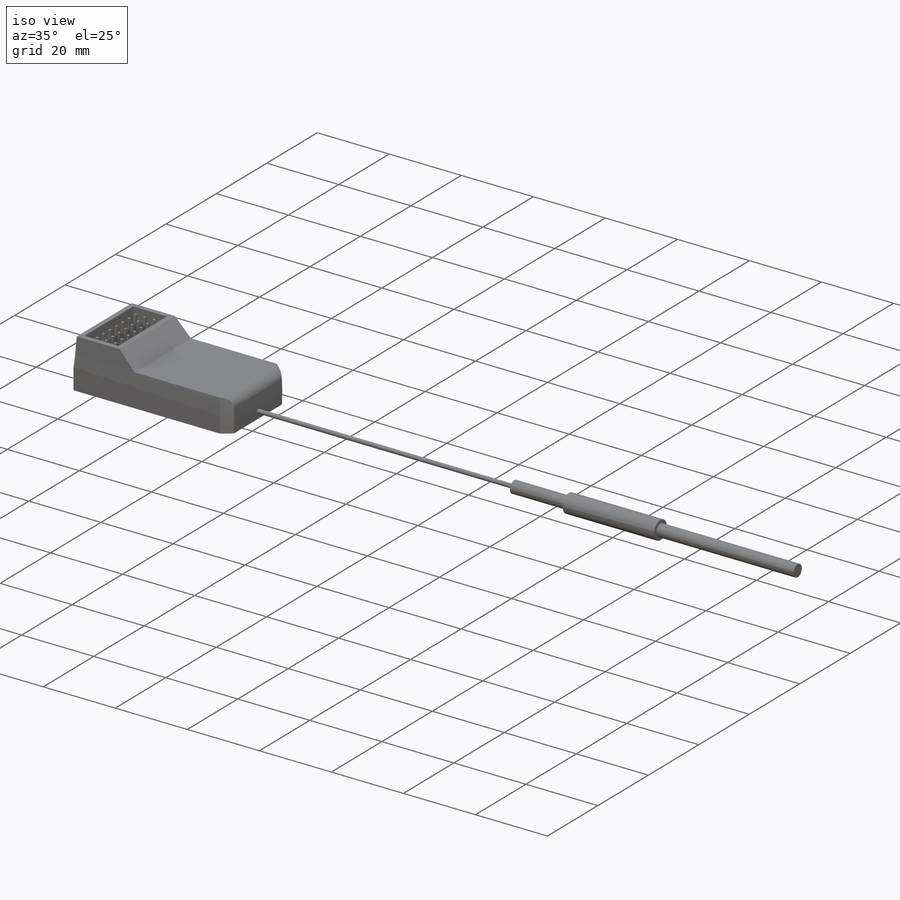
[diagram: iso view]
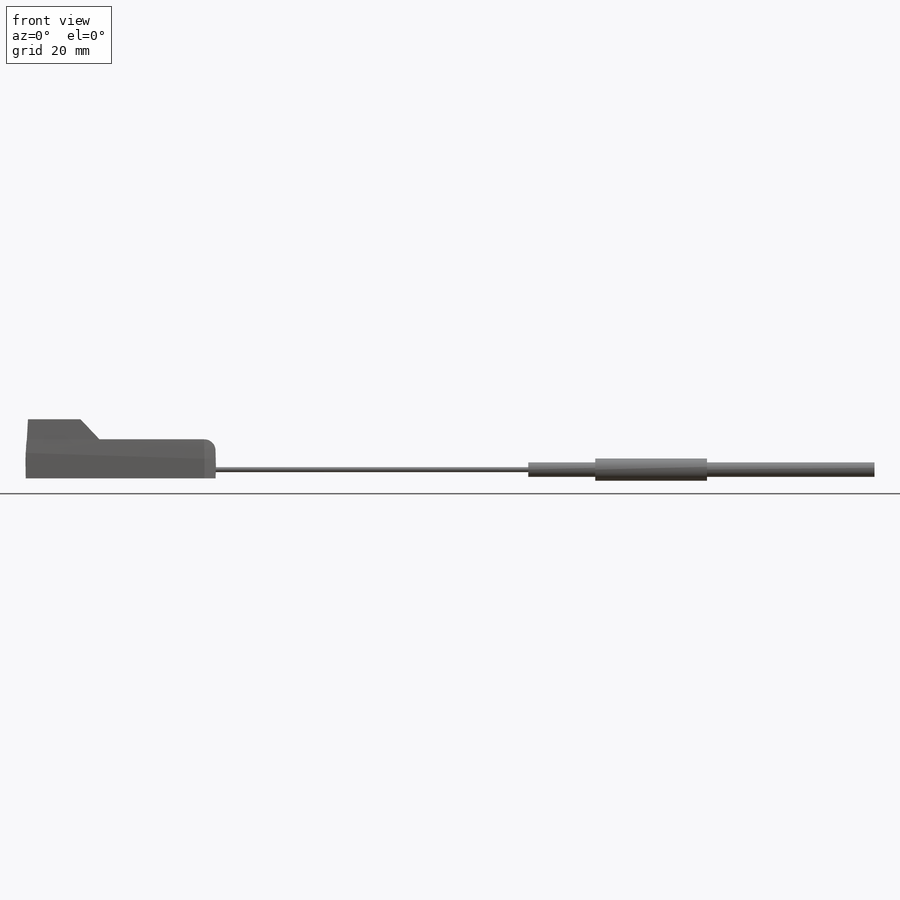
[diagram: front view]
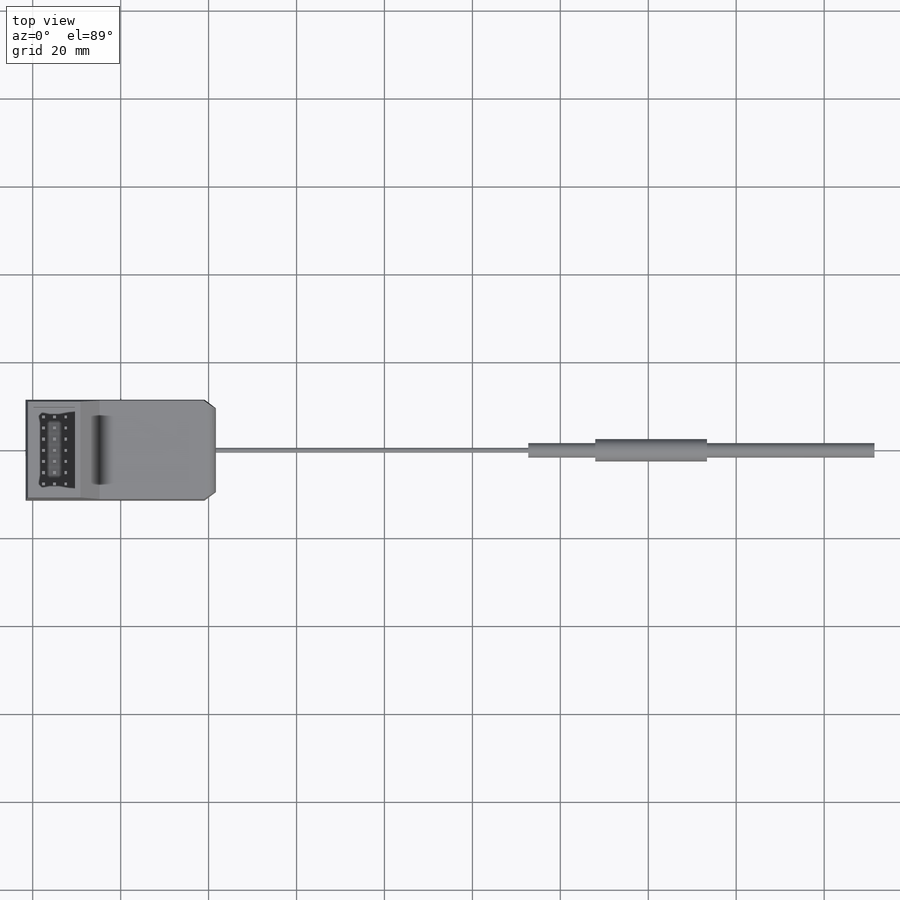
[diagram: top view]
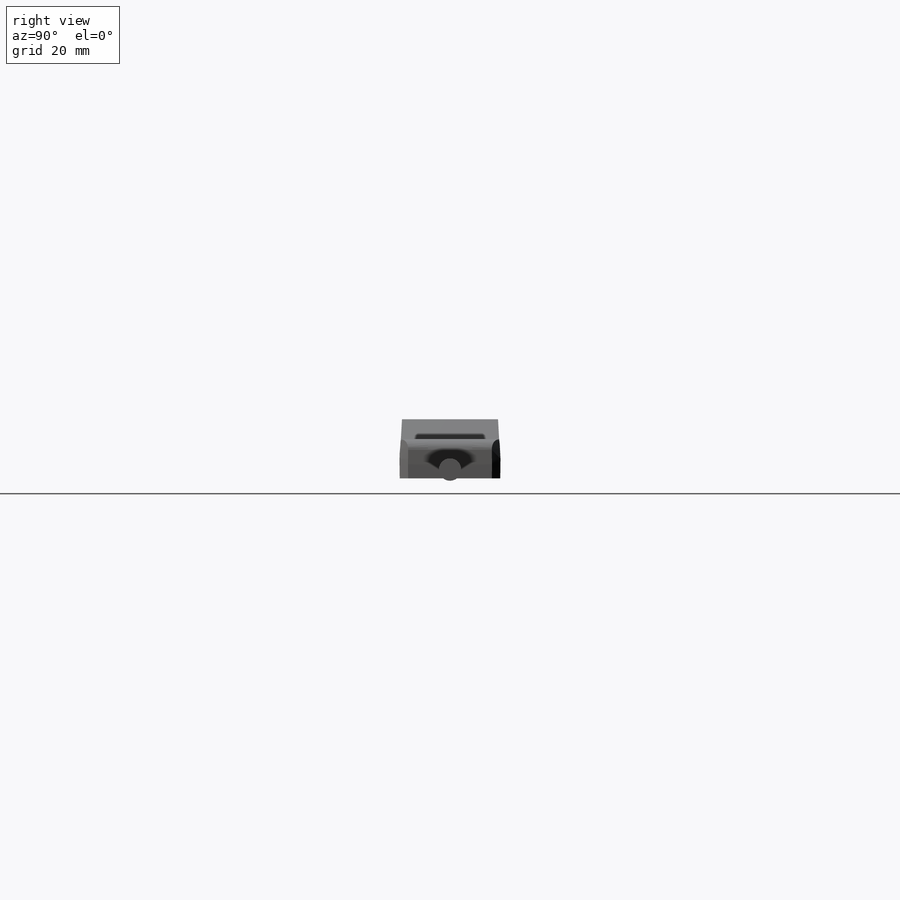
[diagram: right view]
SOLIDWORKS PART (.sldprt)
format: sldprt  version: not decoded by parser v0  size: 417,792 bytes
history: native  units: mm
features: sketch x8, plane x4, material x1, fillet x1, cut_extrude x1, extrude x1, revolve x1 (+11 scaffold rows collapsed)
feature tree (28):
  scaffold x11  (default folders/planes/origin — collapsed)
  material  "Material <not specified>"
  sketch  "Sketch1"  dims[D1=22.86mm D2=43.18mm D3=19.05mm D4=40.64mm D5=21.59mm D6=11.43mm]
  plane  "Plane1"  Offset=8.89mm
  plane  "Plane2"  Offset=13.462mm
  sketch  "Sketch2"  dims[D1=0.254mm]
  plane  "Plane3"  Offset=6.096mm
  sketch  "Sketch3"
  plane  "Plane4"  Offset=0.254mm
  sketch  "Sketch5"  dims[c1.D1=11.938mm c1.D2=22.352mm c1.D3=10.922mm c2.D2=11.938mm c2.D4=9.144mm c3.D2=21.844mm]
  sketch  "Sketch6"  dims[D1=16.51mm]
  fillet  "Fillet1"  Radius=2.54mm
  sketch  "Sketch7"  dims[D1=1.27mm D2=1.27mm D3=1.27mm D4=1.27mm]
  cut_extrude  "Cut-Extrude1"  Depth=6.858mm
  sketch  "Sketch8"  dims[c1.D1=0.635mm c1.D2=0.635mm c1.D4=1.905mm c1.D5=1.905mm c1.D6=1.905mm c1.D7=1.905mm c2.D2=3.0 c2.D3=7.0]
  extrude  "Boss-Extrude1"  Depth=6.35mm
  sketch  "Sketch9"  dims[D1=1.1176mm D2=3.302mm D3=3.302mm D4=5.08mm D5=71.12mm D6=15.24mm D7=25.4mm D8=38.1mm D9=0.5588mm]
  revolve  "Revolve1"  Angle=360deg
decode coverage: 11 of 12 modeling features carry decoded parameters
note: suppression state not decoded; provenance and decode notes live in map.json
